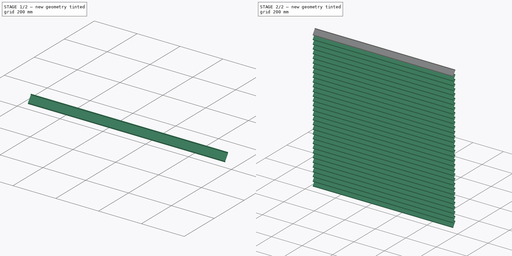
[diagram: build sequence overview — one tinted view per stage of 2, left to right]
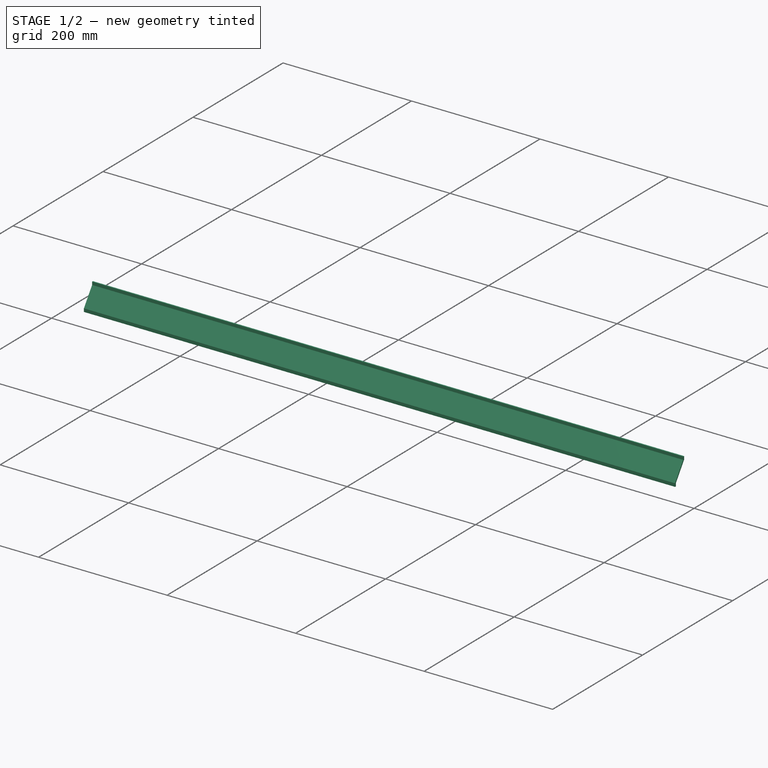
[diagram: stage 1 of 2 — iso view after this stage's code; geometry added in this stage tinted green]
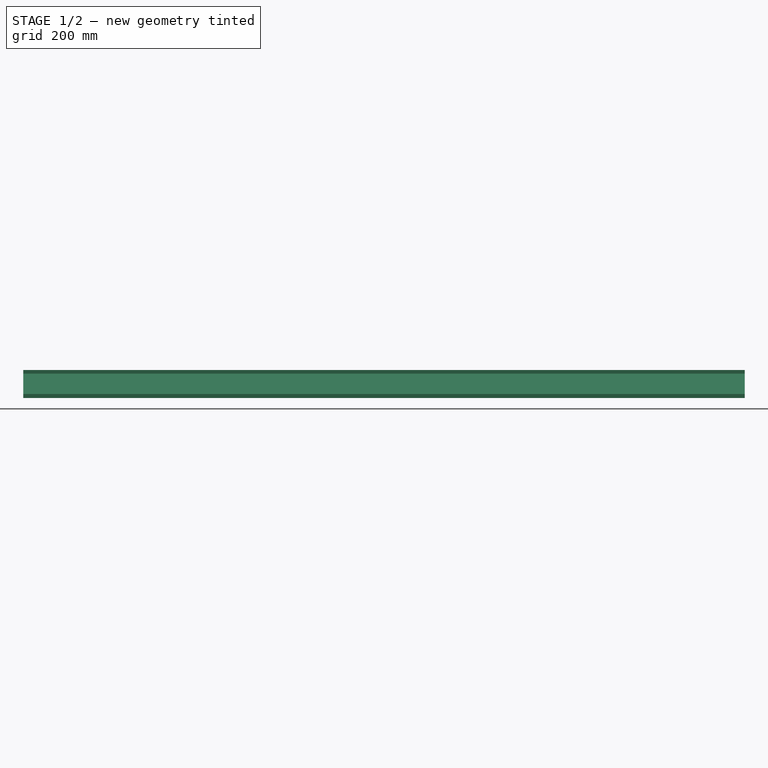
[diagram: stage 1 of 2 — front view after this stage's code; geometry added in this stage tinted green]
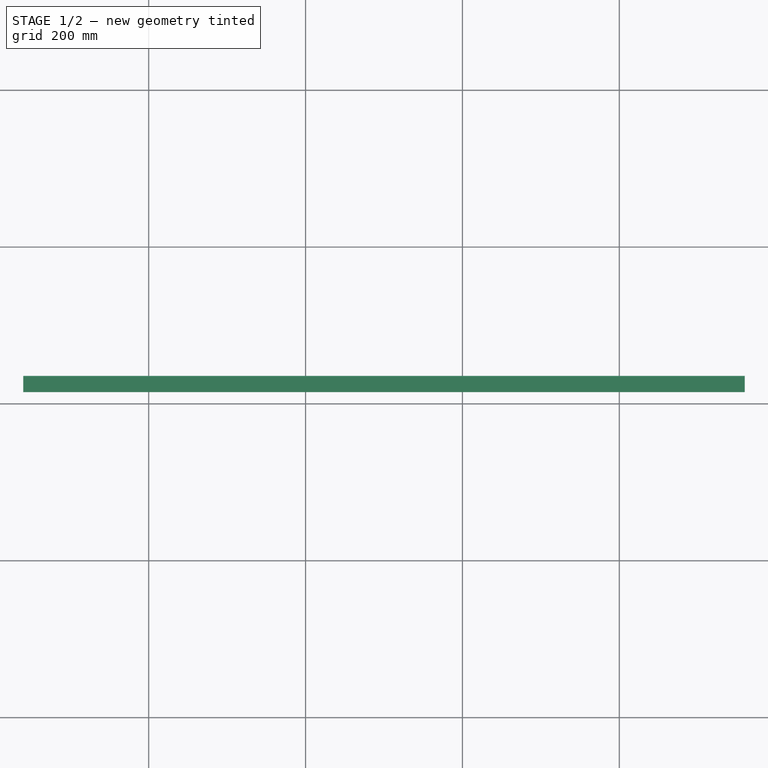
[diagram: stage 1 of 2 — top view after this stage's code; geometry added in this stage tinted green]
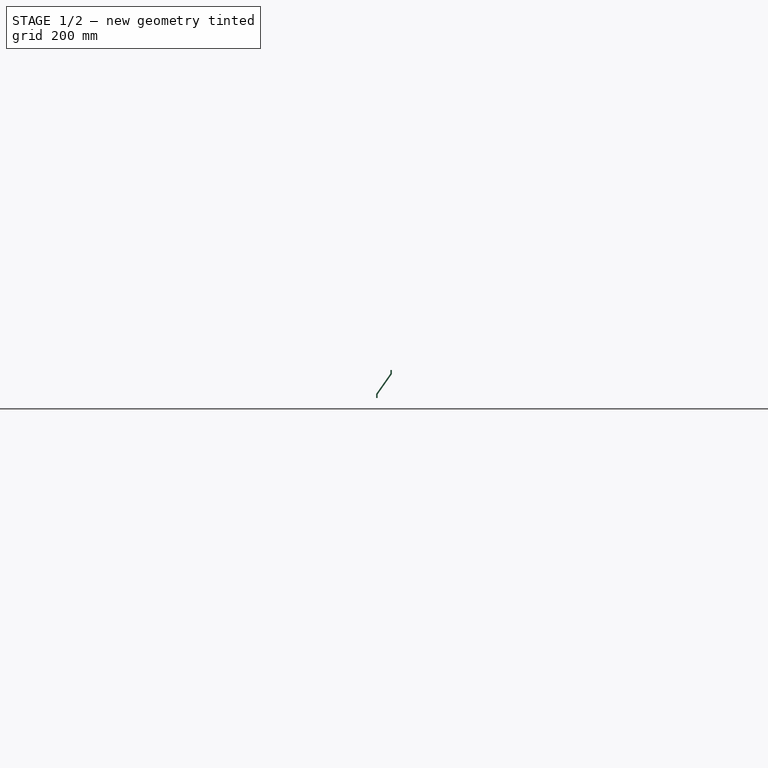
[diagram: stage 1 of 2 — right view after this stage's code; geometry added in this stage tinted green]
FCSTD DOCUMENT  (FreeCAD 0.16R6704 (Git))
Label: Shutter
License: CreativeCommons Attribution
LicenseURL: http://creativecommons.org/licenses/by/4.0/
objects: Sketcher::SketchObject×2, Part::FeaturePython×2, Part::Extrusion×1, App::DocumentObjectGroup×1
note: 5 computed .brp shape members not serialized (recipe doc carries the construction recipe); baked Part::Feature solids carry a one-line shape summary decoded from their .brp

FEATURE [Sketcher::SketchObject] Sketch100  label="Esboco_veneziana_01"
  Placement = pos=(0,0,0) rot=(1,0,0;1.5708rad)
  sketch-geometry (12):
    g0: LineSegment StartX=0 StartY=0 StartZ=0 EndX=1000 EndY=0 EndZ=0
    g1: LineSegment StartX=1000 StartY=0 StartZ=0 EndX=1000 EndY=1000 EndZ=0
    g2: LineSegment StartX=1000 StartY=1000 StartZ=0 EndX=0 EndY=1000 EndZ=0
    g3: LineSegment StartX=0 StartY=1000 StartZ=0 EndX=0 EndY=0 EndZ=0
    g4: LineSegment StartX=40 StartY=40 StartZ=0 EndX=960 EndY=40 EndZ=0
    g5: LineSegment StartX=960 StartY=40 StartZ=0 EndX=960 EndY=960 EndZ=0
    g6: LineSegment StartX=960 StartY=960 StartZ=0 EndX=40 EndY=960 EndZ=0
    g7: LineSegment StartX=40 StartY=960 StartZ=0 EndX=40 EndY=40 EndZ=0
    g8: LineSegment [constr] StartX=-357.364 StartY=960 StartZ=0 EndX=-357.364 EndY=1000 EndZ=0
    g9: LineSegment [constr] StartX=0 StartY=899.922 StartZ=0 EndX=40 EndY=899.922 EndZ=0
    g10: LineSegment [constr] StartX=960 StartY=778.73 StartZ=0 EndX=1000 EndY=778.73 EndZ=0
    g11: LineSegment [constr] StartX=-155.006 StartY=40 StartZ=0 EndX=-155.006 EndY=0 EndZ=0
  constraints (35):
    c: Coincident(g0,g1)
    c: Coincident(g1,g2)
    c: Coincident(g2,g3)
    c: Coincident(g3,g0)
    c: Horizontal(g0)
    c: Horizontal(g2)
    c: Vertical(g1)
    c: Vertical(g3)
    c: Coincident(g4,g5)
    c: Coincident(g5,g6)
    c: Coincident(g6,g7)
    c: Coincident(g7,g4)
    c: Horizontal(g4)
    c: Horizontal(g6)
    c: Vertical(g5)
    c: Vertical(g7)
    c: DistanceX(g0) = 1000  'Largura_vao'
    c: DistanceX(g2,g6) = 40  'Perfis'
    c: Coincident(g0,g-1)
    c: DistanceY(g0,g1) = 1000  'Altura_vao'
    c: PointOnObject(g8,g6)
    c: PointOnObject(g8,g2)
    c: PointOnObject(g9,g3)
    c: PointOnObject(g9,g7)
    c: PointOnObject(g10,g5)
    c: PointOnObject(g10,g1)
    c: PointOnObject(g11,g4)
    c: PointOnObject(g11,g0)
    c: Equal(g8,g9)
    c: Equal(g9,g10)
    c: Equal(g10,g11)
    c: Angle(g8) = 1.5708
    c: Angle(g9) = 0
    c: Angle(g10) = 0
    c: Angle(g11) = -1.5708
FEATURE [Part::FeaturePython] Window076  label="Shutter frame"  # WARN: FeaturePython — macro-defined, semantics opaque (R4)
  Base = -> Sketch100
  Height = 0
  HoleDepth = 0
  MoveWithHost = true
  Normal = (0,1,0)
  Preset = 0
  Role = 0
  Width = 0
  WindowParts = MONTANTES | Frame | Wire0,Wire1 | 50.0 | 0.0
FEATURE [Sketcher::SketchObject] Sketch101
  ExternalGeometry = -> [Window076]
  Placement = pos=(40,0,0) rot=(0.57735,0.57735,0.57735;2.0944rad)
  Support = -> Window076 [Face8]
  sketch-geometry (9):
    g0: LineSegment [constr] StartX=25 StartY=1206.65 StartZ=0 EndX=25 EndY=-8.73838 EndZ=0
    g1: LineSegment StartX=33 StartY=958 StartZ=0 EndX=33 EndY=953.4 EndZ=0
    g2: LineSegment StartX=33 StartY=953.4 StartZ=0 EndX=14.7946 EndY=927.4 EndZ=0
    g3: LineSegment StartX=14.7946 StartY=927.4 StartZ=0 EndX=14.7946 EndY=922.4 EndZ=0
    g4: LineSegment StartX=14.7946 StartY=922.4 StartZ=0 EndX=16.7946 EndY=922.4 EndZ=0
    g5: LineSegment StartX=16.7946 StartY=922.4 StartZ=0 EndX=16.7946 EndY=927 EndZ=0
    g6: LineSegment StartX=16.7946 StartY=927 StartZ=0 EndX=35 EndY=953 EndZ=0
    g7: LineSegment StartX=35 StartY=953 StartZ=0 EndX=35 EndY=958 EndZ=0
    g8: LineSegment StartX=35 StartY=958 StartZ=0 EndX=33 EndY=958 EndZ=0
  constraints (26):
    c: Symmetric(g-4,g-5,g0)
    c: Coincident(g1,g8)
    c: Coincident(g7,g8)
    c: Coincident(g6,g7)
    c: Coincident(g1,g2)
    c: Coincident(g2,g3)
    c: Coincident(g5,g6)
    c: Coincident(g3,g4)
    c: Coincident(g4,g5)
    c: DistanceX(g1,g7) = 2
    c: DistanceX(g3,g4) = 2
    c: Parallel(g2,g6)
    c: Vertical(g1)
    c: Vertical(g7)
    c: Vertical(g3)
    c: Vertical(g5)
    c: Horizontal(g8)
    c: Horizontal(g4)
    c: Angle(g2) = -2.18166
    c: DistanceY(g6,g7) = 5
    c: DistanceY(g5,g6) = 26
    c: DistanceY(g1,g1) = 4.6
    c: DistanceY(g1,g-3) = 2
    c: Symmetric(g-3,g-3,g0)
    c: DistanceX(g0,g7) = 10
    c: DistanceY(g5,g5) = 4.6
FEATURE [Part::Extrusion] Extrude_Sketch097  label="Módulo veneziana 001"
  Base = -> Sketch101
  Dir = (920,0,0)
  Solid = true
  expr: Dir.x = Esboco_veneziana_01.Constraints.Largura_vao - Esboco_veneziana_01.Constraints.Perfis * 2
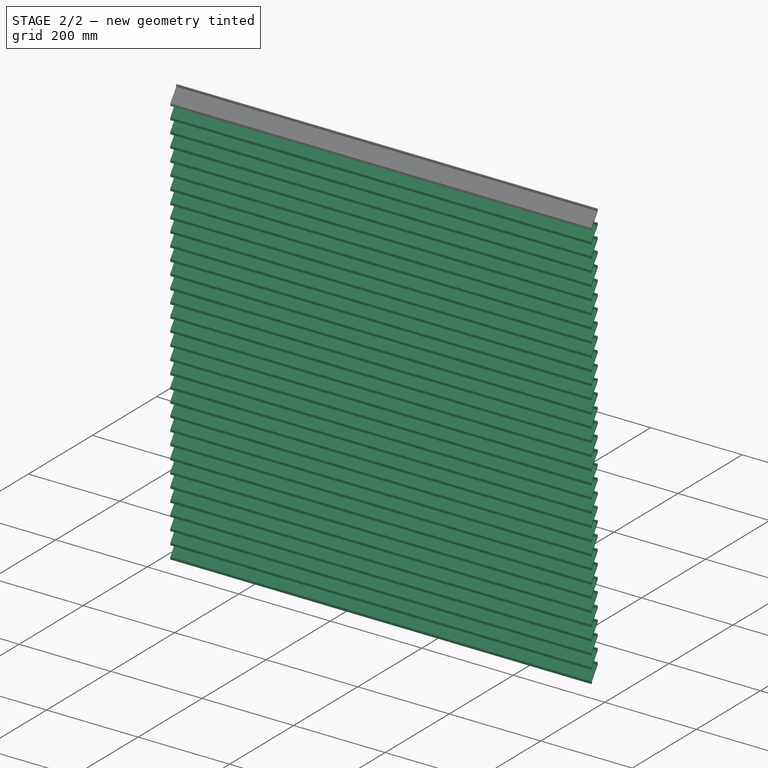
[diagram: stage 2 of 2 — iso view after this stage's code; geometry added in this stage tinted green]
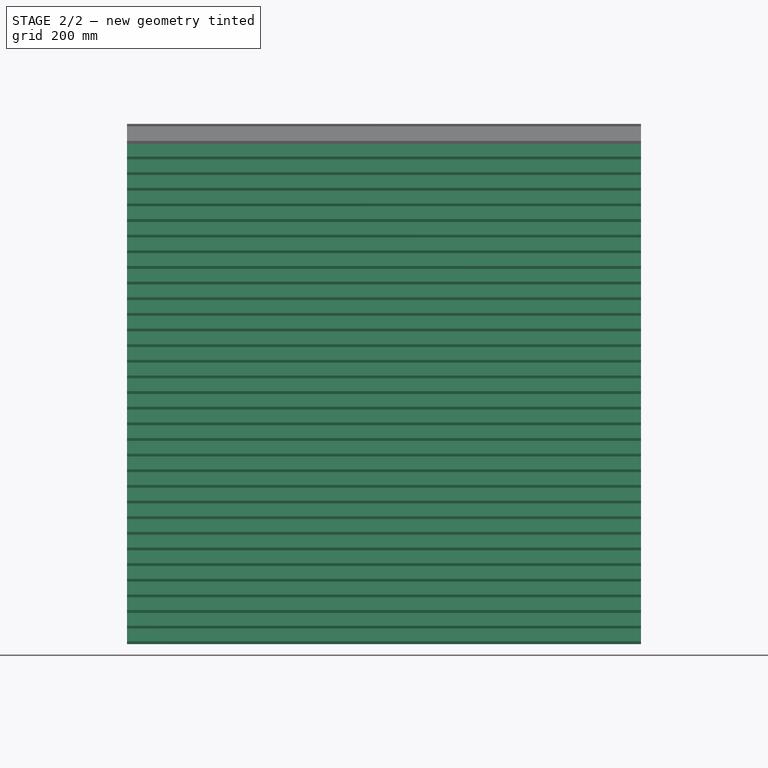
[diagram: stage 2 of 2 — front view after this stage's code; geometry added in this stage tinted green]
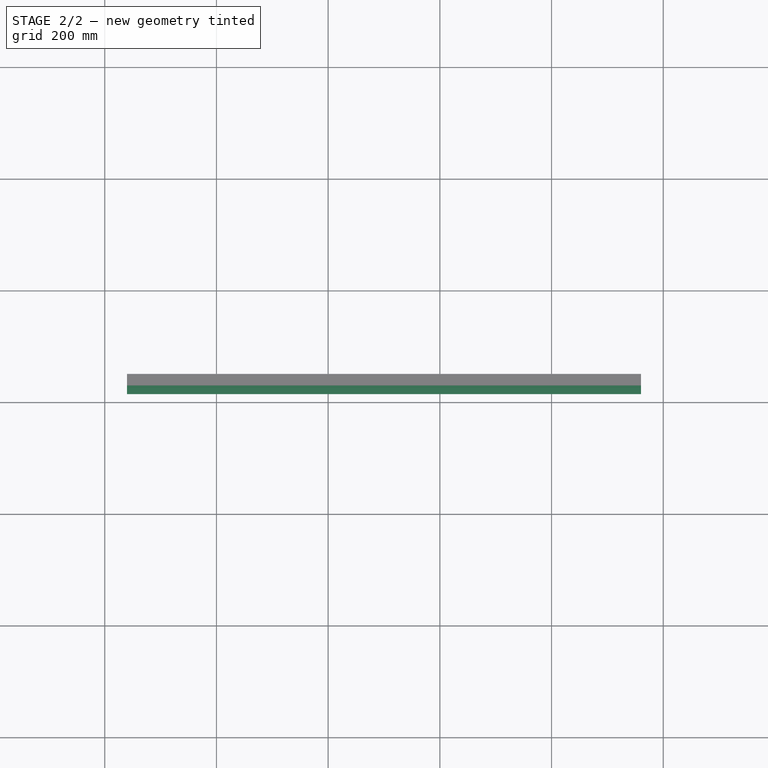
[diagram: stage 2 of 2 — top view after this stage's code; geometry added in this stage tinted green]
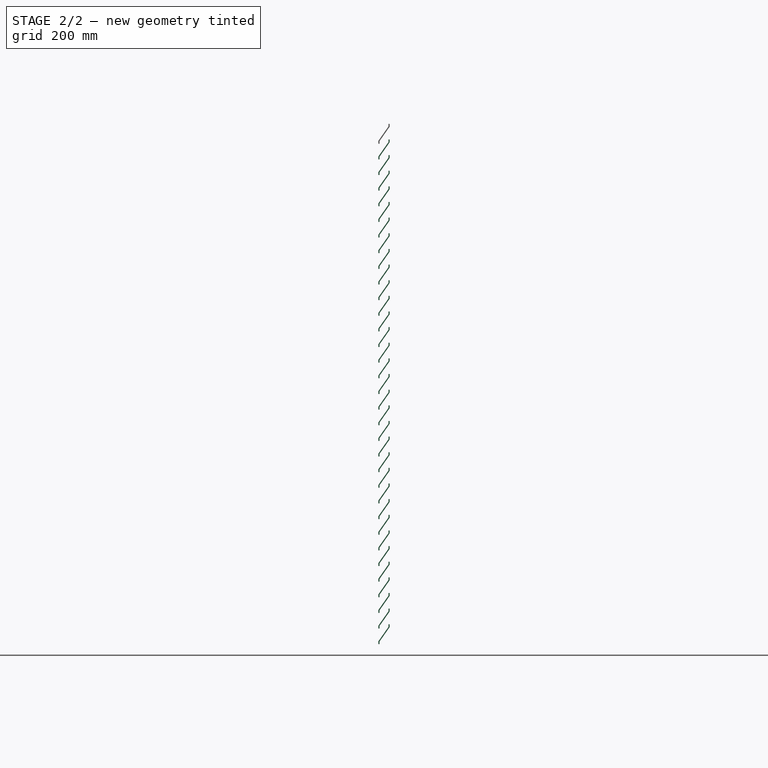
[diagram: stage 2 of 2 — right view after this stage's code; geometry added in this stage tinted green]
FEATURE [Part::FeaturePython] Array003  label="Shutter001"  # Draft array (typed FeaturePython)
  Angle = 360
  ArrayType = 0
  Axis = (0,0,1)
  Base = -> Extrude_Sketch097
  Center = (0,0,0)
  Fuse = false
  IntervalAxis = (0,0,0)
  IntervalX = (1,0,0)
  IntervalY = (0,1,0)
  IntervalZ = (0,0,-28)
  NumberPolar = 1
  NumberX = 1
  NumberY = 1
  NumberZ = 33
  expr: NumberZ = (Esboco_veneziana_01.Constraints.Altura_vao - Esboco_veneziana_01.Constraints.Perfis * 2) / 28
FEATURE [App::DocumentObjectGroup] Grupo084  label="Shutter"
  Group = -> [Window076,Array003,Extrude_Sketch097]
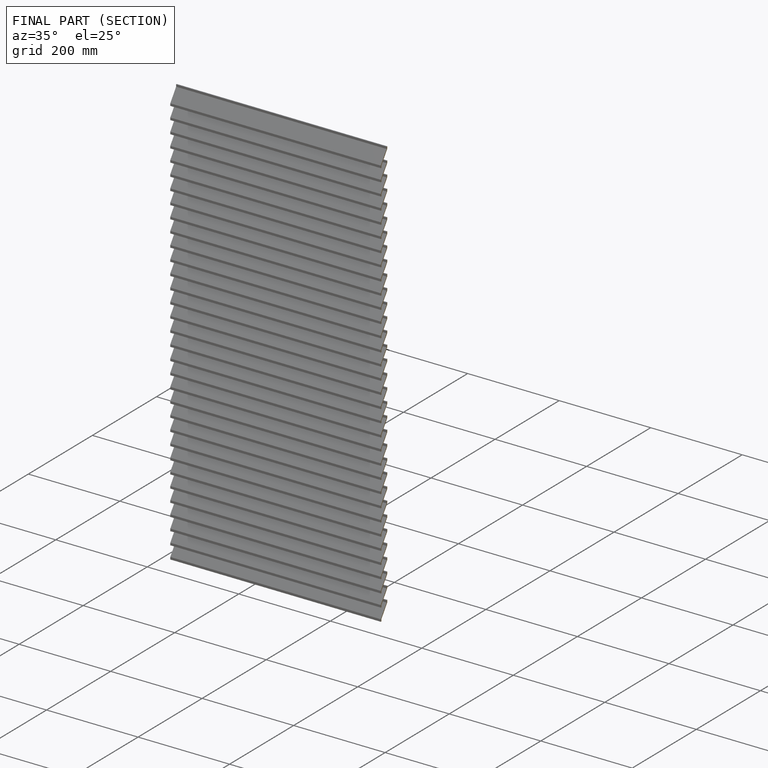
[diagram: finished part — half-section view (interior)]
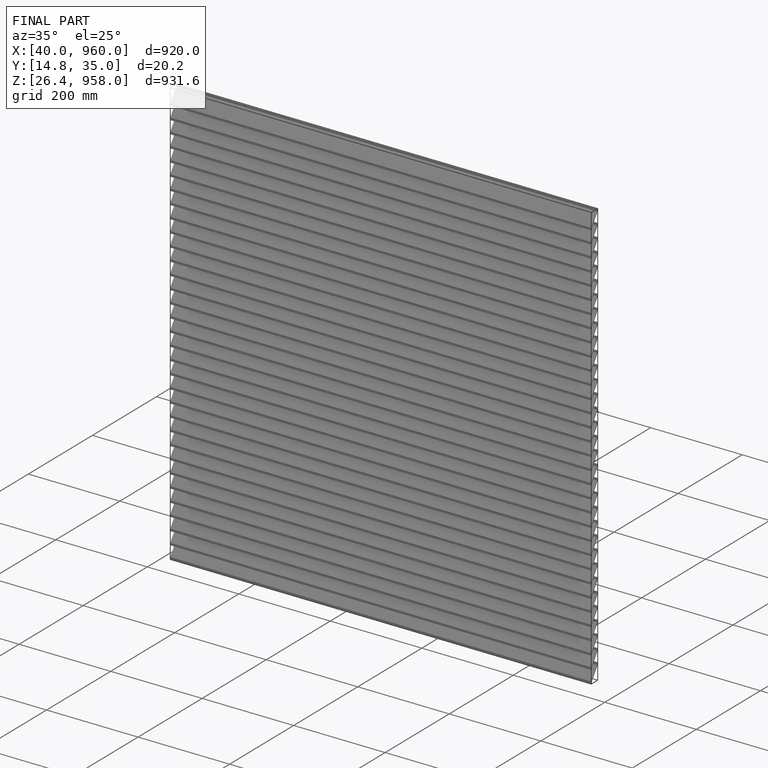
[diagram: finished part — iso view with bounding-box wireframe]
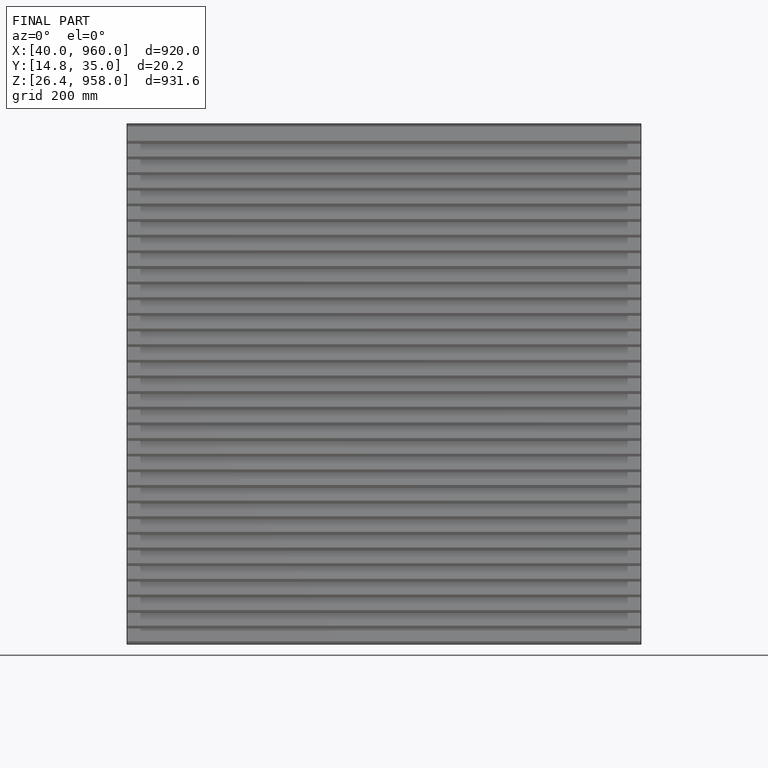
[diagram: finished part — front view with bounding-box wireframe]
